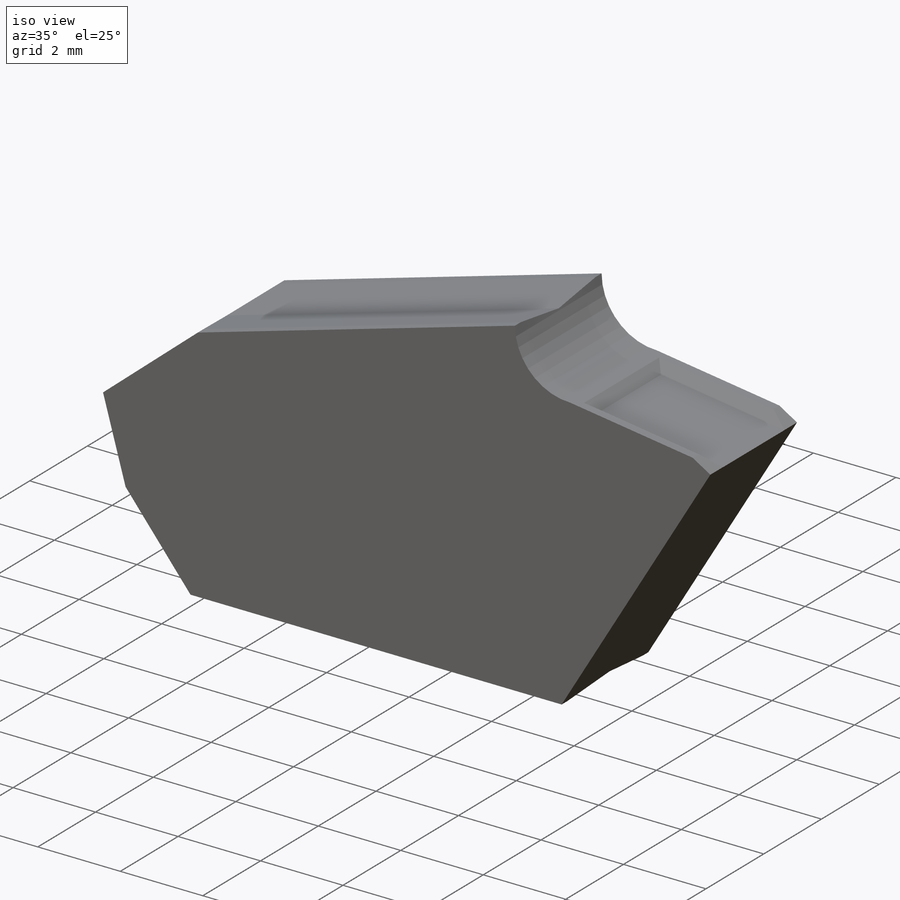
[diagram: iso view]
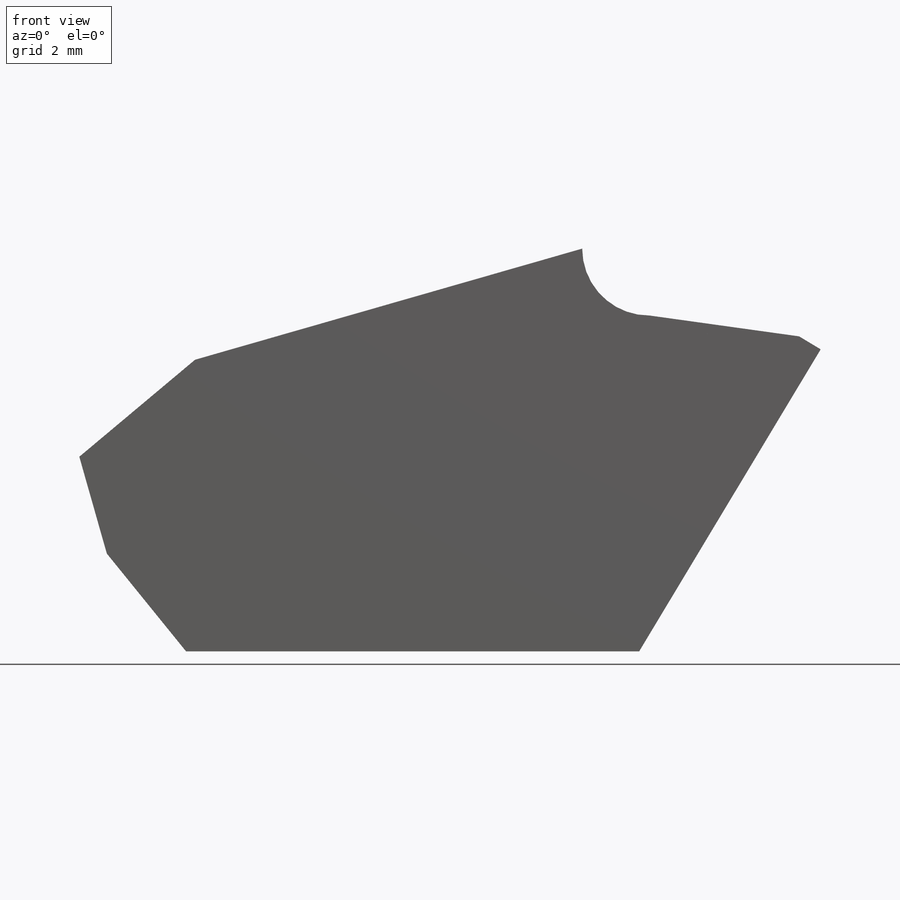
[diagram: front view]
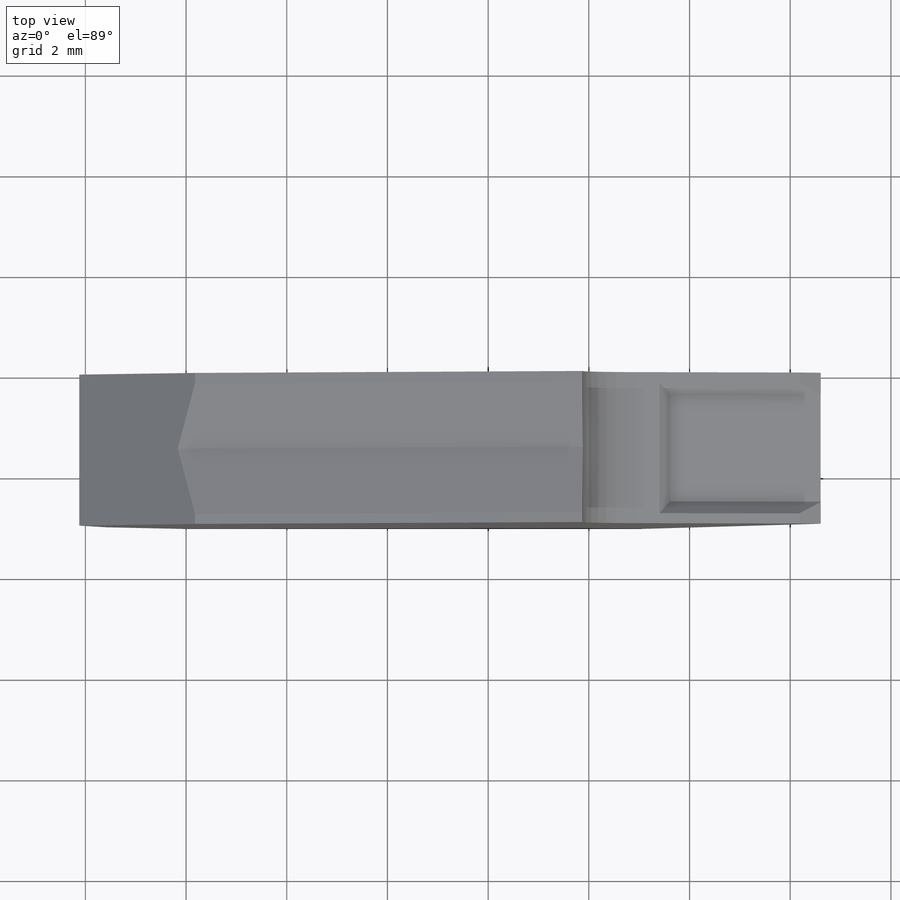
[diagram: top view]
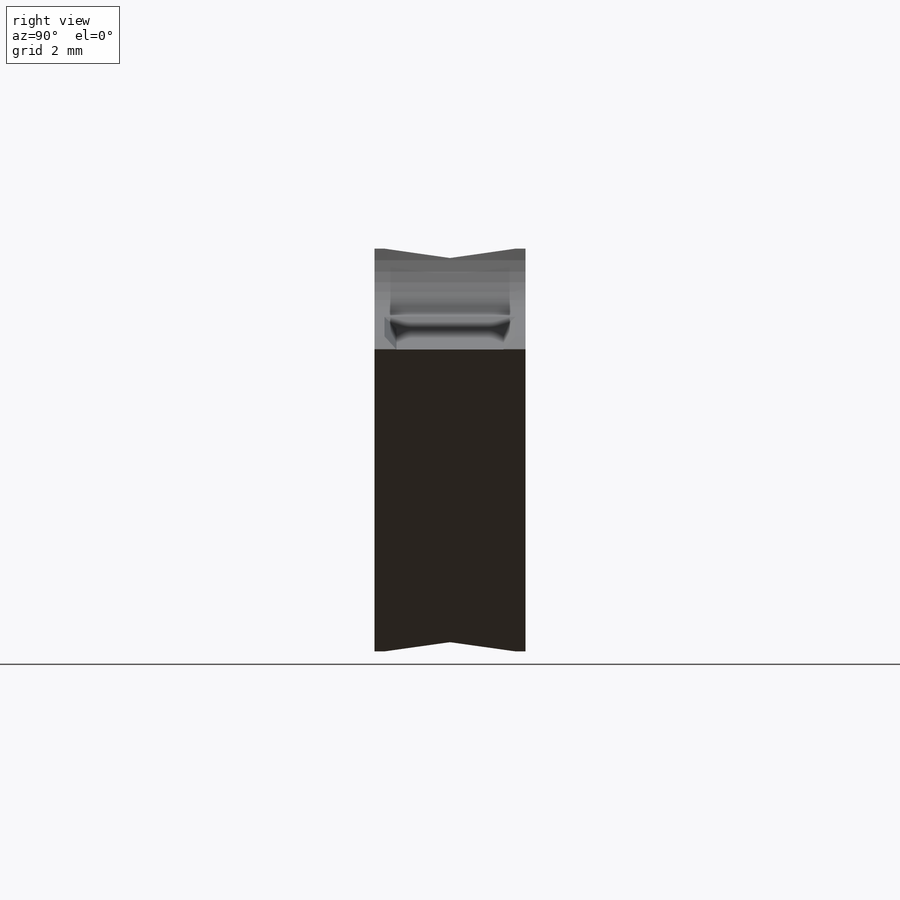
[diagram: right view]
SOLIDWORKS PART (.sldprt)
format: sldprt  version: not decoded by parser v0  size: 217,088 bytes
history: native  units: mm
features: sketch x4, cut_extrude x3, material x1, extrude x1 (+16 scaffold rows collapsed)
feature tree (25):
  scaffold x16  (default folders/planes/origin — collapsed)
  material  "Material <not specified>"
  sketch  "Sketch1"  dims[D1=0.5mm D2=3.0mm D3=8.0mm D4=3.0mm D5=2.0mm D6=2.5mm D7=7.0mm D8=9.0mm D9=6.0mm D10=6.0mm D11=6.0mm]
  extrude  "Extrude1"  Depth=3mm
  sketch  "Sketch2"  dims[D1=0.2mm D2=0.2mm D3=0.2mm]
  cut_extrude  "Extrude2"  Depth=0.2mm
  sketch  "Sketch3"  dims[D1=0.2mm D2=0.2mm]
  cut_extrude  "Extrude3"  Depth=0.2mm
  sketch  "Sketch4"  dims[D1=0.2mm D2=0.2mm]
  cut_extrude  "Extrude4"  Depth=0.2mm
decode coverage: 8 of 8 modeling features carry decoded parameters
note: suppression state not decoded; provenance and decode notes live in map.json
